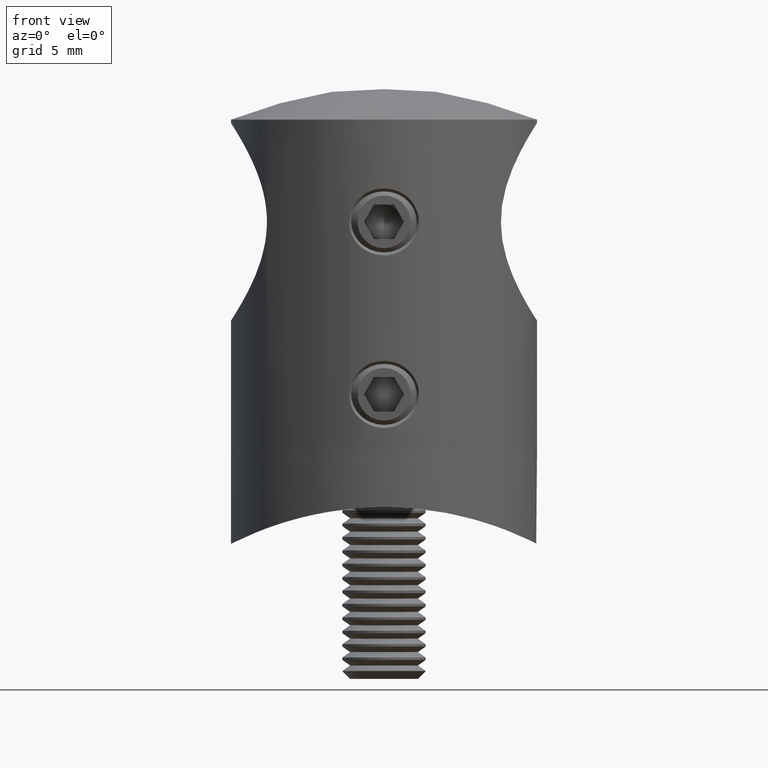
[diagram: clean part render]
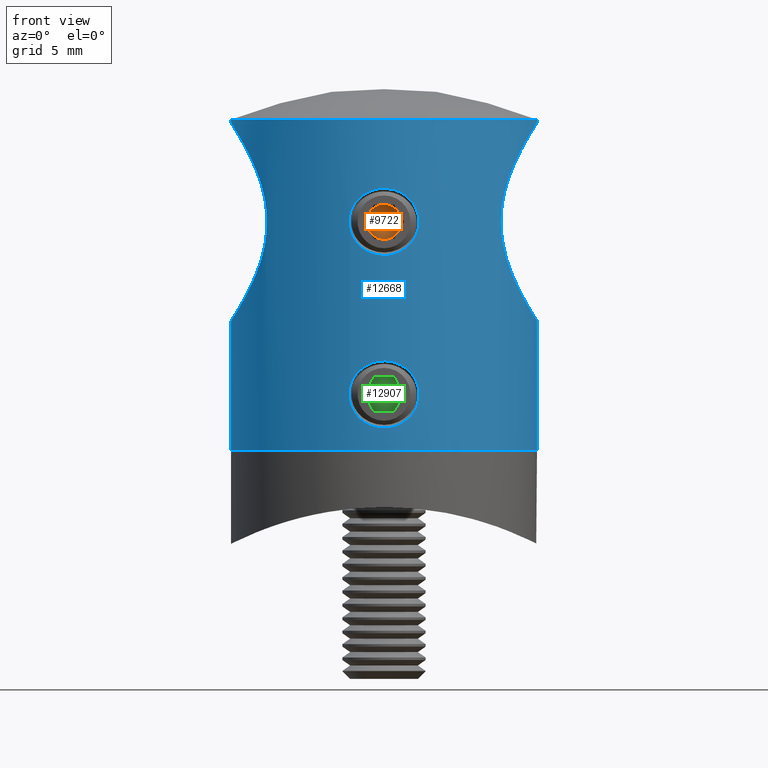
[diagram: same view with three faces highlighted in distinct colors, each labeled with its STEP entity id]
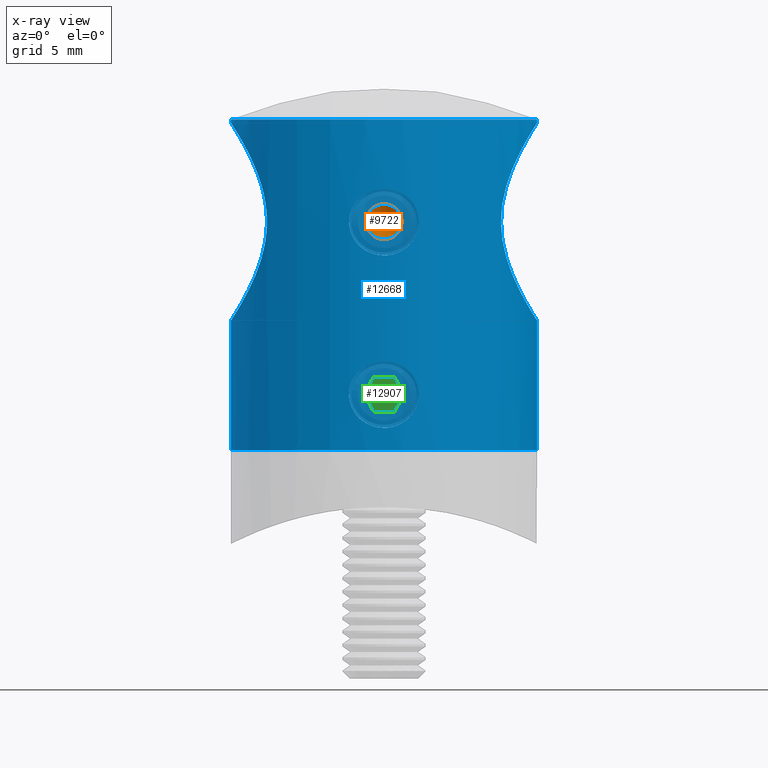
[diagram: x-ray of the same camera — body ghosted, the three highlighted faces saturated]
A machine part, front view with three faces highlighted in distinct colors.
The next image is the same camera in x-ray (body ghosted, the three faces saturated) — at least one of them is partly hidden behind the body in this view.
Their STEP definitions:

[orange] entity #9722 — the highlighted conical surface has half-angle 59 deg.
#578 = AXIS2_PLACEMENT_3D ( 'NONE', #1191, #5048, #3116 ) ;
#605 = DIRECTION ( 'NONE',  ( 1.000000000000000000, -0.0000000000000000000, 2.180260461768213300E-016 ) ) ;
#744 = VERTEX_POINT ( 'NONE', #14039 ) ;
#832 = DIRECTION ( 'NONE',  ( 1.000000000000000000, -0.0000000000000000000, 2.180260461768213300E-016 ) ) ;
#885 = CARTESIAN_POINT ( 'NONE',  ( 2.000000000000001300, 1.082531754730553100, -0.6249999999999965600 ) ) ;
#1191 = CARTESIAN_POINT ( 'NONE',  ( 2.000000000000000000, 0.0000000000000000000, 6.209410300080172700E-015 ) ) ;
#1214 = CIRCLE ( 'NONE', #21669, 1.250000000000002900 ) ;
#1291 = CARTESIAN_POINT ( 'NONE',  ( 2.000000000000001300, -1.082531754730553300, -0.6249999999999958900 ) ) ;
#1345 = CIRCLE ( 'NONE', #578, 1.250000000000002900 ) ;
#2207 = ORIENTED_EDGE ( 'NONE', *, *, #14970, .F. ) ;
#2560 = ORIENTED_EDGE ( 'NONE', *, *, #9775, .F. ) ;
#2993 = CARTESIAN_POINT ( 'NONE',  ( 2.000000000000001300, -1.082531754730552600, 0.6250000000000086600 ) ) ;
#3116 = DIRECTION ( 'NONE',  ( 0.0000000000000000000, 0.0000000000000000000, 1.000000000000000000 ) ) ;
#3741 = ORIENTED_EDGE ( 'NONE', *, *, #7053, .T. ) ;
#3820 = VERTEX_POINT ( 'NONE', #1291 ) ;
#5048 = DIRECTION ( 'NONE',  ( -1.000000000000000000, -0.0000000000000000000, 0.0000000000000000000 ) ) ;
#5764 = CIRCLE ( 'NONE', #8219, 1.250000000000002900 ) ;
#6404 = CARTESIAN_POINT ( 'NONE',  ( 2.000000000000001300, 0.0000000000000000000, 5.755839955992561400E-015 ) ) ;
#6817 = CONICAL_SURFACE ( 'NONE', #9667, 1.250000000000005300, 1.029744258676652800 ) ;
#7053 = EDGE_CURVE ( 'NONE', #744, #16678, #11853, .T. ) ;
#7721 = DIRECTION ( 'NONE',  ( 3.469446951953599400E-016, 0.0000000000000000000, -1.000000000000000000 ) ) ;
#7764 = DIRECTION ( 'NONE',  ( -1.000000000000000000, -0.0000000000000000000, 0.0000000000000000000 ) ) ;
#7894 = EDGE_CURVE ( 'NONE', #22087, #10348, #1214, .T. ) ;
#8219 = AXIS2_PLACEMENT_3D ( 'NONE', #15038, #7764, #9740 ) ;
#8251 = DIRECTION ( 'NONE',  ( 3.469446951953599400E-016, 0.0000000000000000000, -1.000000000000000000 ) ) ;
#8914 = AXIS2_PLACEMENT_3D ( 'NONE', #6404, #832, #8251 ) ;
#9258 = DIRECTION ( 'NONE',  ( -1.000000000000000000, -0.0000000000000000000, 0.0000000000000000000 ) ) ;
#9667 = AXIS2_PLACEMENT_3D ( 'NONE', #22468, #605, #7721 ) ;
#9722 = ADVANCED_FACE ( 'NONE', ( #18844 ), #6817, .F. ) ;
#9740 = DIRECTION ( 'NONE',  ( 0.0000000000000000000, 0.0000000000000000000, 1.000000000000000000 ) ) ;
#9775 = EDGE_CURVE ( 'NONE', #744, #3820, #19429, .T. ) ;
#9840 = EDGE_CURVE ( 'NONE', #10348, #16678, #1345, .T. ) ;
#10348 = VERTEX_POINT ( 'NONE', #20021 ) ;
#10908 = AXIS2_PLACEMENT_3D ( 'NONE', #16032, #12514, #12270 ) ;
#10964 = EDGE_LOOP ( 'NONE', ( #3741, #14349, #15978, #2207, #22680, #2560 ) ) ;
#11092 = DIRECTION ( 'NONE',  ( 0.0000000000000000000, 0.0000000000000000000, 1.000000000000000000 ) ) ;
#11853 = CIRCLE ( 'NONE', #8914, 1.250000000000005300 ) ;
#12270 = DIRECTION ( 'NONE',  ( 0.0000000000000000000, 0.0000000000000000000, 1.000000000000000000 ) ) ;
#12514 = DIRECTION ( 'NONE',  ( -1.000000000000000000, -0.0000000000000000000, 0.0000000000000000000 ) ) ;
#13755 = VERTEX_POINT ( 'NONE', #2993 ) ;
#14039 = CARTESIAN_POINT ( 'NONE',  ( 2.000000000000001800, 3.755786496842908900E-016, -1.249999999999999300 ) ) ;
#14117 = CARTESIAN_POINT ( 'NONE',  ( 2.000000000000000000, 0.0000000000000000000, 1.250000000000000200 ) ) ;
#14349 = ORIENTED_EDGE ( 'NONE', *, *, #9840, .F. ) ;
#14839 = DIRECTION ( 'NONE',  ( 0.0000000000000000000, 0.0000000000000000000, 1.000000000000000000 ) ) ;
#14918 = CARTESIAN_POINT ( 'NONE',  ( 2.000000000000000000, 0.0000000000000000000, 6.209410300080172700E-015 ) ) ;
#14970 = EDGE_CURVE ( 'NONE', #13755, #22087, #15866, .T. ) ;
#15038 = CARTESIAN_POINT ( 'NONE',  ( 2.000000000000000000, 0.0000000000000000000, 6.209410300080172700E-015 ) ) ;
#15866 = CIRCLE ( 'NONE', #21105, 1.250000000000002900 ) ;
#15978 = ORIENTED_EDGE ( 'NONE', *, *, #7894, .F. ) ;
#16032 = CARTESIAN_POINT ( 'NONE',  ( 2.000000000000000000, 0.0000000000000000000, 6.209410300080172700E-015 ) ) ;
#16678 = VERTEX_POINT ( 'NONE', #885 ) ;
#17644 = EDGE_CURVE ( 'NONE', #3820, #13755, #5764, .T. ) ;
#18529 = DIRECTION ( 'NONE',  ( -1.000000000000000000, -0.0000000000000000000, 0.0000000000000000000 ) ) ;
#18844 = FACE_OUTER_BOUND ( 'NONE', #10964, .T. ) ;
#19429 = CIRCLE ( 'NONE', #10908, 1.250000000000002900 ) ;
#20021 = CARTESIAN_POINT ( 'NONE',  ( 2.000000000000001300, 1.082531754730552600, 0.6250000000000085500 ) ) ;
#20152 = CARTESIAN_POINT ( 'NONE',  ( 2.000000000000000000, 0.0000000000000000000, 6.209410300080172700E-015 ) ) ;
#21105 = AXIS2_PLACEMENT_3D ( 'NONE', #20152, #18529, #14839 ) ;
#21669 = AXIS2_PLACEMENT_3D ( 'NONE', #14918, #9258, #11092 ) ;
#22087 = VERTEX_POINT ( 'NONE', #14117 ) ;
#22468 = CARTESIAN_POINT ( 'NONE',  ( 2.000000000000001300, 0.0000000000000000000, 5.755839955992561400E-015 ) ) ;
#22680 = ORIENTED_EDGE ( 'NONE', *, *, #17644, .F. ) ;

[blue] entity #12668 — the highlighted cylindrical surface (bore or boss wall) has radius 11 mm, axis along (0, 0, 1).
#29 = CARTESIAN_POINT ( 'NONE',  ( -10.99148700237107000, 0.4946336514024489700, 23.48682921834959500 ) ) ;
#116 = CARTESIAN_POINT ( 'NONE',  ( -10.83727758145454500, -1.898942890585058700, 9.554592817602502600 ) ) ;
#398 = CARTESIAN_POINT ( 'NONE',  ( 1.265772666319474600, -10.93117442413812100, 1.890181047744562000 ) ) ;
#470 = CARTESIAN_POINT ( 'NONE',  ( -2.256864148927033100, -10.76618397735132300, 5.071739856433886500 ) ) ;
#491 = CARTESIAN_POINT ( 'NONE',  ( -9.947855748482227900, -4.698627205197779800, 21.72771569207881400 ) ) ;
#541 = CARTESIAN_POINT ( 'NONE',  ( 1.890372269886328600, -10.83698242449021300, 2.402011649646420100 ) ) ;
#572 = CARTESIAN_POINT ( 'NONE',  ( -9.611617826107233100, 5.361562930642147500, 21.07654444607351300 ) ) ;
#620 = CARTESIAN_POINT ( 'NONE',  ( 10.74873748235941500, 2.348874627246540800, 9.695645327102669200 ) ) ;
#622 = CARTESIAN_POINT ( 'NONE',  ( 1.893470199382560000, -10.83645095076173300, 5.594738271604635200 ) ) ;
#700 = CARTESIAN_POINT ( 'NONE',  ( 1.116343252776195600, -10.94426300031197400, 6.169244775404881600 ) ) ;
#806 = CARTESIAN_POINT ( 'NONE',  ( 10.39262641175012400, 3.610959546615188500, 10.28242976620969500 ) ) ;
#811 = CARTESIAN_POINT ( 'NONE',  ( 10.18244583592515300, 4.166392664168421700, 22.15353385299223300 ) ) ;
#837 = CARTESIAN_POINT ( 'NONE',  ( 10.32148190190005700, 3.808950110484045700, 10.40382481806966700 ) ) ;
#893 = CARTESIAN_POINT ( 'NONE',  ( 8.604462001010002600, -6.853532578562345100, 18.26917815072582100 ) ) ;
#916 = CARTESIAN_POINT ( 'NONE',  ( 10.83727758145454200, 1.898942890585056900, 9.554592817602499000 ) ) ;
#979 = CARTESIAN_POINT ( 'NONE',  ( 8.402678174434404600, 7.098943678384629600, 16.89213793340527300 ) ) ;
#1058 = CARTESIAN_POINT ( 'NONE',  ( 8.775104742126355700, 6.634005485550293500, 13.85960298956172700 ) ) ;
#1137 = CARTESIAN_POINT ( 'NONE',  ( 10.99148700237106600, -0.4946336514024511400, 23.48682921834958400 ) ) ;
#1163 = ORIENTED_EDGE ( 'NONE', *, *, #20777, .T. ) ;
#1199 = CARTESIAN_POINT ( 'NONE',  ( -2.511703974928243700, -10.70940442520010400, 16.24273929157860500 ) ) ;
#1275 = CYLINDRICAL_SURFACE ( 'NONE', #17225, 10.99999999999999800 ) ;
#1278 = CARTESIAN_POINT ( 'NONE',  ( -1.776361239528236000, -10.85562254072522800, 18.10747495177491800 ) ) ;
#1302 = VERTEX_POINT ( 'NONE', #15335 ) ;
#1356 = CARTESIAN_POINT ( 'NONE',  ( -1.533328306870229700, -10.89347143110832900, 14.48063127000943600 ) ) ;
#1396 = CARTESIAN_POINT ( 'NONE',  ( -8.402230374133903700, 7.099473585173075900, 16.14441378369493300 ) ) ;
#1430 = CARTESIAN_POINT ( 'NONE',  ( 0.3311095054345719000, -10.99992139316568700, 18.81483076791868600 ) ) ;
#1513 = CARTESIAN_POINT ( 'NONE',  ( 0.1643935056931485900, -11.00000000000000000, 13.98484488613688500 ) ) ;
#1593 = CARTESIAN_POINT ( 'NONE',  ( 1.890372269886392700, -10.83698242449020200, 14.80201164964647400 ) ) ;
#1751 = CARTESIAN_POINT ( 'NONE',  ( -2.020667218593132300E-015, -10.99999999999999800, 13.98484490069484600 ) ) ;
#1796 = CARTESIAN_POINT ( 'NONE',  ( -10.39889520333792000, -3.592859680259353100, 22.52820406413297100 ) ) ;
#1859 = CARTESIAN_POINT ( 'NONE',  ( -1.261211241404091900, -10.92831925419361200, 1.905472548706967000 ) ) ;
#1877 = CARTESIAN_POINT ( 'NONE',  ( -9.125703618000466500, 6.149007665515013900, 19.97822596878965500 ) ) ;
#1959 = CARTESIAN_POINT ( 'NONE',  ( -10.32893578937957300, -3.788682685638863100, 22.40898187192343400 ) ) ;
#1960 = CARTESIAN_POINT ( 'NONE',  ( 11.00000000000000400, -4.065758146820641600E-016, 9.299999999999998900 ) ) ;
#2019 = CARTESIAN_POINT ( 'NONE',  ( -2.320240922396904300, -10.75251050043824500, 3.075104445097748900 ) ) ;
#2039 = CARTESIAN_POINT ( 'NONE',  ( 10.10539096786581000, -4.364378087092130300, 10.78095930433928400 ) ) ;
#2100 = CARTESIAN_POINT ( 'NONE',  ( -1.533328306870229700, -10.89347143110832900, 2.080631270009437800 ) ) ;
#2318 = CARTESIAN_POINT ( 'NONE',  ( 1.660782927785467800, -10.87454360748031900, 5.818738680863162000 ) ) ;
#2345 = CARTESIAN_POINT ( 'NONE',  ( -8.713927950806921200, -6.716937605689044400, 18.74613954834619600 ) ) ;
#2397 = CARTESIAN_POINT ( 'NONE',  ( 1.399033590713174800, -10.91066932007638700, 6.005811658922017800 ) ) ;
#2427 = CARTESIAN_POINT ( 'NONE',  ( -8.713338137559071900, -6.714570131918350200, 14.08064251900250200 ) ) ;
#2474 = CARTESIAN_POINT ( 'NONE',  ( 1.998357958369267700, -10.81735236367315700, 5.471525135721878800 ) ) ;
#2553 = CARTESIAN_POINT ( 'NONE',  ( 0.3311095053121640400, -10.99992139316571600, 6.414830767918807900 ) ) ;
#2638 = AXIS2_PLACEMENT_3D ( 'NONE', #4516, #20819, #19195 ) ;
#2668 = CARTESIAN_POINT ( 'NONE',  ( 9.866065930372878200, 4.867538550024849400, 21.57379312522551000 ) ) ;
#2674 = EDGE_LOOP ( 'NONE', ( #1163 ) ) ;
#2750 = CARTESIAN_POINT ( 'NONE',  ( 11.00035846530514200, 0.2214725248977498800, 23.50055536974437600 ) ) ;
#2824 = CARTESIAN_POINT ( 'NONE',  ( 8.712531411531246700, -6.715614010298820000, 18.71630400190571900 ) ) ;
#2880 = CARTESIAN_POINT ( 'NONE',  ( 1.116343252776377500, -10.94426300031195800, 18.56924477539900700 ) ) ;
#2909 = CARTESIAN_POINT ( 'NONE',  ( 9.126122353799150500, 6.148371097858402300, 12.82074655299189000 ) ) ;
#2964 = CARTESIAN_POINT ( 'NONE',  ( -0.4903270790838651400, -10.98906635504204500, 18.76868820874940300 ) ) ;
#2987 = CARTESIAN_POINT ( 'NONE',  ( 10.95950930229003000, -0.9729361877379636400, 23.43713052271612800 ) ) ;
#3044 = CARTESIAN_POINT ( 'NONE',  ( -1.543197030239320100, -10.89377639715052800, 18.33176205964109700 ) ) ;
#3252 = CARTESIAN_POINT ( 'NONE',  ( -8.712531411531246700, 6.715614010298820900, 18.71630400190571200 ) ) ;
#3286 = CARTESIAN_POINT ( 'NONE',  ( 1.995493121756457100, -10.81788920119303300, 14.92473889477621200 ) ) ;
#3325 = CARTESIAN_POINT ( 'NONE',  ( -10.53371792439568500, 3.199456506150320000, 10.04470791799387700 ) ) ;
#3437 = CARTESIAN_POINT ( 'NONE',  ( 2.430721202022829700, -10.72812621128730400, 15.77131744761732800 ) ) ;
#3610 = DIRECTION ( 'NONE',  ( 1.000000000000000000, 0.0000000000000000000, 0.0000000000000000000 ) ) ;
#3646 = CARTESIAN_POINT ( 'NONE',  ( -8.402678174434401000, -7.098943678384630500, 16.89213793340527300 ) ) ;
#3718 = CARTESIAN_POINT ( 'NONE',  ( -8.558052539306178400, -6.911109365526332500, 14.75603232091404500 ) ) ;
#3860 = FACE_OUTER_BOUND ( 'NONE', #2674, .T. ) ;
#3884 = CARTESIAN_POINT ( 'NONE',  ( 9.620235205234214600, -5.345870137422466900, 11.70599883665757100 ) ) ;
#3937 = CARTESIAN_POINT ( 'NONE',  ( -2.511716516407509900, -10.70940148379944100, 4.000337813666588400 ) ) ;
#4011 = CARTESIAN_POINT ( 'NONE',  ( -1.115993498496286900, -10.94431255610769100, 1.830513048320795400 ) ) ;
#4095 = CARTESIAN_POINT ( 'NONE',  ( -0.9631123533028165300, -10.95775591053731500, 6.230546734909931500 ) ) ;
#4121 = CARTESIAN_POINT ( 'NONE',  ( -9.620087015600834200, -5.346277183801666900, 21.09378180451514600 ) ) ;
#4167 = CARTESIAN_POINT ( 'NONE',  ( -1.268443744210112200, -10.93091935414430800, 6.108644643610253100 ) ) ;
#4172 = VERTEX_POINT ( 'NONE', #6300 ) ;
#4190 = CARTESIAN_POINT ( 'NONE',  ( -10.10047049893865000, 4.375164704028947900, 22.01011196334505400 ) ) ;
#4241 = CARTESIAN_POINT ( 'NONE',  ( -2.087083062809130600, -10.80018908579545200, 5.343704459521158700 ) ) ;
#4265 = CARTESIAN_POINT ( 'NONE',  ( -10.75343564665797100, 2.358425003356712700, 23.11323472417503300 ) ) ;
#4317 = CARTESIAN_POINT ( 'NONE',  ( 1.543890676010267700, -10.89363039259128000, 2.069276441871760900 ) ) ;
#4370 = CARTESIAN_POINT ( 'NONE',  ( 10.10047034617905700, 4.375483649562105400, 10.78982942695773600 ) ) ;
#4399 = CARTESIAN_POINT ( 'NONE',  ( 2.511799944583926100, -10.70938191707799400, 4.156688389902742000 ) ) ;
#4512 = CARTESIAN_POINT ( 'NONE',  ( 8.402230374133905500, -7.099473585173072400, 16.14441378369492600 ) ) ;
#4516 = CARTESIAN_POINT ( 'NONE',  ( 0.0000000000000000000, 0.0000000000000000000, 23.74878637916747000 ) ) ;
#4586 = CARTESIAN_POINT ( 'NONE',  ( 10.58394417430352200, -3.004956304348640000, 22.83701482432169200 ) ) ;
#4670 = CARTESIAN_POINT ( 'NONE',  ( 8.485167145169288700, -7.000410335542114600, 15.19174385368667200 ) ) ;
#4724 = CARTESIAN_POINT ( 'NONE',  ( 1.263044276381334100, -10.92810671215078600, 18.49350634205210800 ) ) ;
#4749 = CARTESIAN_POINT ( 'NONE',  ( 8.400936357774289900, -7.101004865438448600, 16.86596985220172600 ) ) ;
#4806 = CARTESIAN_POINT ( 'NONE',  ( -2.177980241902248300, -10.78262365602053500, 17.61316799658935400 ) ) ;
#4849 = CARTESIAN_POINT ( 'NONE',  ( 10.87554067984692500, 1.666944937178387300, 9.494294178244365100 ) ) ;
#4886 = CARTESIAN_POINT ( 'NONE',  ( -0.3276201266745030200, -10.99632626431403900, 18.79983241680432100 ) ) ;
#4971 = CARTESIAN_POINT ( 'NONE',  ( 0.6619940356628312200, -10.98427163761045800, 18.75101510548229200 ) ) ;
#4998 = AXIS2_PLACEMENT_3D ( 'NONE', #7949, #20850, #20770 ) ;
#5051 = CARTESIAN_POINT ( 'NONE',  ( -1.397269774137160900, -10.91089534265097100, 14.39305190935820100 ) ) ;
#5099 = CARTESIAN_POINT ( 'NONE',  ( -8.441615027164317600, 7.053644850158699200, 17.33924664838002300 ) ) ;
#5173 = CARTESIAN_POINT ( 'NONE',  ( -9.946385993569125000, 4.711332995782086600, 11.06939817182897000 ) ) ;
#5214 = CARTESIAN_POINT ( 'NONE',  ( 2.495530447802617200, -10.71323517469580200, 16.71605740764301700 ) ) ;
#5342 = CARTESIAN_POINT ( 'NONE',  ( -8.604462001010004400, 6.853532578562342400, 18.26917815072582800 ) ) ;
#5505 = CARTESIAN_POINT ( 'NONE',  ( -10.96270294519259100, -0.9359780770641063000, 23.44210052358779400 ) ) ;
#5592 = CARTESIAN_POINT ( 'NONE',  ( -10.53058741645235900, -3.186281656805154800, 22.74910505009927800 ) ) ;
#5644 = CARTESIAN_POINT ( 'NONE',  ( -2.179285043678576000, -10.78236625296386300, 2.788823219965029600 ) ) ;
#5664 = CARTESIAN_POINT ( 'NONE',  ( 10.84731057724800800, -1.885380813810667400, 9.538551356808243400 ) ) ;
#5952 = CARTESIAN_POINT ( 'NONE',  ( -0.4903270790838651400, -10.98906635504204500, 6.368688208749404100 ) ) ;
#5977 = CARTESIAN_POINT ( 'NONE',  ( -8.442684130846844300, -7.052366154554801100, 15.45217027337697100 ) ) ;
#6023 = CARTESIAN_POINT ( 'NONE',  ( -2.430803093581094000, -10.72810763096586800, 4.628396887069898800 ) ) ;
#6052 = CARTESIAN_POINT ( 'NONE',  ( -10.99297397562942500, -0.4598195259154094200, 23.48913258083435500 ) ) ;
#6110 = CARTESIAN_POINT ( 'NONE',  ( 0.9648935137385287200, -10.95759921274479100, 6.229834885426770400 ) ) ;
#6139 = CARTESIAN_POINT ( 'NONE',  ( -8.775104742126355700, -6.634005485550294300, 13.85960298956172900 ) ) ;
#6189 = CARTESIAN_POINT ( 'NONE',  ( -0.8104466578491685800, -10.97117418873381900, 6.291497780559771200 ) ) ;
#6300 = CARTESIAN_POINT ( 'NONE',  ( 10.99999999999999600, 0.0000000000000000000, 23.74878637916747000 ) ) ;
#6382 = CARTESIAN_POINT ( 'NONE',  ( 8.713927950806924700, 6.716937605689042600, 18.74613954834618600 ) ) ;
#6463 = CARTESIAN_POINT ( 'NONE',  ( 9.611617826107234900, -5.361562930642149300, 21.07654444607350500 ) ) ;
#6536 = CARTESIAN_POINT ( 'NONE',  ( 8.713338137559064800, 6.714570131918344800, 14.08064251900249500 ) ) ;
#6589 = CARTESIAN_POINT ( 'NONE',  ( 1.660782927847469700, -10.87454360747016800, 18.21873868081512500 ) ) ;
#6612 = CARTESIAN_POINT ( 'NONE',  ( 9.941559082019178800, -4.721753626895443600, 21.72179177554297200 ) ) ;
#6749 = CARTESIAN_POINT ( 'NONE',  ( -0.3315329493984952600, -10.99999999999999600, 13.98484493005393500 ) ) ;
#6909 = CARTESIAN_POINT ( 'NONE',  ( -2.511729057886776100, -10.70939854239878000, 16.55793633575457200 ) ) ;
#6957 = CARTESIAN_POINT ( 'NONE',  ( -8.716197689742701400, 6.713987155183081900, 14.04568685242710500 ) ) ;
#7069 = CARTESIAN_POINT ( 'NONE',  ( 2.511715917072544300, -10.70940162436372500, 16.39829770860849600 ) ) ;
#7235 = CARTESIAN_POINT ( 'NONE',  ( 9.445230156511863500, 5.645901492588390800, 12.07133753557889700 ) ) ;
#7236 = CARTESIAN_POINT ( 'NONE',  ( 2.495297978060719400, -10.71329013739285700, 16.08204341393588500 ) ) ;
#7283 = CARTESIAN_POINT ( 'NONE',  ( -8.602152119893851500, 6.856982156598213900, 14.49886696194903600 ) ) ;
#7362 = CARTESIAN_POINT ( 'NONE',  ( -10.39262641175012400, -3.610959546615189400, 10.28242976620969400 ) ) ;
#7422 = CARTESIAN_POINT ( 'NONE',  ( -1.777212278540741600, -10.85548324659036000, 2.293344047289692400 ) ) ;
#7441 = CARTESIAN_POINT ( 'NONE',  ( -9.941566712052260600, -4.721521006677416900, 11.07832343451947400 ) ) ;
#7447 = EDGE_CURVE ( 'NONE', #16534, #16534, #8049, .T. ) ;
#7492 = ORIENTED_EDGE ( 'NONE', *, *, #14515, .T. ) ;
#7527 = CARTESIAN_POINT ( 'NONE',  ( 10.75664178787483000, -2.343158699880905100, 9.681676794799932000 ) ) ;
#7585 = CARTESIAN_POINT ( 'NONE',  ( -2.511703974928243700, -10.70940442520010400, 3.842739291575714100 ) ) ;
#7734 = CARTESIAN_POINT ( 'NONE',  ( 2.318934602487287200, -10.75279230290379400, 3.072080269349922100 ) ) ;
#7762 = B_SPLINE_CURVE_WITH_KNOTS ( 'NONE', 3,
 ( #14235, #14551, #23549, #16324, #18244, #3325, #14312, #19941, #5173, #21876, #8965, #12563, #14390, #6957, #7283, #20097, #8802, #18080, #1396, #14472, #5099, #10788, #5342, #3252, #16079, #17928, #1877, #14718, #572, #15177, #4190, #9661, #11504, #13351, #9197, #4265, #9122, #16953, #22583, #29, #12800, #23804, #6052, #5505, #18404, #17111, #21956, #10958, #5592, #1796, #1959, #15106, #20186, #491, #14631, #4121, #18787, #9733, #7835, #2345, #17032, #13426, #3646, #18864, #5977, #3718, #20652, #2427, #6139, #22505, #7913, #16566, #16491, #7441, #20731, #18326, #7362, #11584, #15254, #18943, #20265, #116, #7987, #22035, #9284, #11038 ),
 .UNSPECIFIED., .T., .F.,
 ( 4, 2, 2, 2, 2, 2, 2, 2, 2, 2, 2, 2, 2, 2, 2, 2, 2, 2, 2, 2, 2, 2, 2, 2, 2, 2, 2, 2, 2, 2, 2, 2, 2, 2, 2, 2, 2, 2, 2, 2, 2, 2, 4 ),
 ( 0.0000000000000000000, 0.001429294004371782500, 0.002858588008743564900, 0.004287882013115348000, 0.005717176017487131600, 0.007146470021858916000, 0.008575764026230701200, 0.01000505803060248700, 0.01071970503278837900, 0.01143435203497426500, 0.01286364603934605200, 0.01357829304153194300, 0.01429294004371783200, 0.01572223404808961700, 0.01715152805246140200, 0.01858082205683318800, 0.01929546905901908000, 0.02001011606120497700, 0.02143941006557676500, 0.02215405706776266500, 0.02286870406994855700, 0.02358335107213445400, 0.02429799807432034600, 0.02572729207869214500, 0.02644193908087803800, 0.02715658608306393400, 0.02787123308524983000, 0.02858588008743573000, 0.03001517409180752900, 0.03144446809617931800, 0.03287376210055111000, 0.03430305610492290200, 0.03573235010929469400, 0.03644699711148059700, 0.03716164411366650000, 0.03859093811803830000, 0.04002023212241010600, 0.04144952612678190500, 0.04216417312896780800, 0.04287882013115371100, 0.04359346713333961400, 0.04430811413552551700, 0.04573740813989731600 ),
 .UNSPECIFIED. ) ;
#7808 = CARTESIAN_POINT ( 'NONE',  ( 1.774878405260975000, -10.85586508052390200, 2.291099913721534000 ) ) ;
#7835 = CARTESIAN_POINT ( 'NONE',  ( -8.979158664259912800, -6.358026487253732200, 19.59329309121691800 ) ) ;
#7885 = CARTESIAN_POINT ( 'NONE',  ( 2.430721202022804000, -10.72812621128730700, 3.371317447623022100 ) ) ;
#7913 = CARTESIAN_POINT ( 'NONE',  ( -9.126122353799150500, -6.148371097858401400, 12.82074655299189400 ) ) ;
#7949 = CARTESIAN_POINT ( 'NONE',  ( 0.0000000000000000000, 0.0000000000000000000, 0.0000000000000000000 ) ) ;
#7962 = CARTESIAN_POINT ( 'NONE',  ( 0.9623838866416614100, -10.95781991341035100, 1.769162574123964900 ) ) ;
#7987 = CARTESIAN_POINT ( 'NONE',  ( -10.87554067984692100, -1.666944937178388700, 9.494294178244363300 ) ) ;
#7995 = CIRCLE ( 'NONE', #4998, 11.00000000000000000 ) ;
#8036 = CARTESIAN_POINT ( 'NONE',  ( 0.6509923735187122000, -10.98190638562528300, 1.662025886936727500 ) ) ;
#8049 = B_SPLINE_CURVE_WITH_KNOTS ( 'NONE', 3,
 ( #1960, #20423, #16645, #5664, #7527, #14945, #9362, #2039, #14867, #3884, #21211, #22822, #22973, #15651, #17590, #4670, #8381, #10207, #4512, #4749, #12056, #11980, #893, #2824, #10283, #12142, #22899, #13738, #6463, #6612, #19432, #8463, #19273, #8304, #4586, #21293, #9976, #23132, #2987, #1137, #13979, #2750, #19357, #15817, #21135, #15575, #8150, #11821, #20970, #15734, #15496, #811, #23055, #13662, #2668, #17361, #17435, #10139, #8230, #6382, #10057, #19190, #979, #13821, #17509, #21053, #11903, #6536, #1058, #13906, #2909, #7235, #12999, #12914, #4370, #837, #806, #17106, #10136, #11976, #620, #916, #4849, #17523, #12153, #19693 ),
 .UNSPECIFIED., .T., .F.,
 ( 4, 2, 2, 2, 2, 2, 2, 2, 2, 2, 2, 2, 2, 2, 2, 2, 2, 2, 2, 2, 2, 2, 2, 2, 2, 2, 2, 2, 2, 2, 2, 2, 2, 2, 2, 2, 2, 2, 2, 2, 2, 2, 4 ),
 ( 0.0000000000000000000, 0.001429294004371784200, 0.002858588008743568400, 0.004287882013115352400, 0.005717176017487137600, 0.007146470021858922900, 0.008575764026230708200, 0.01000505803060249300, 0.01071970503278838600, 0.01143435203497427400, 0.01286364603934605700, 0.01357829304153195000, 0.01429294004371784100, 0.01572223404808962800, 0.01715152805246140900, 0.01858082205683319500, 0.01929546905901909100, 0.02001011606120498700, 0.02143941006557678300, 0.02215405706776268200, 0.02286870406994858200, 0.02358335107213447800, 0.02429799807432037700, 0.02572729207869217300, 0.02644193908087807600, 0.02715658608306396900, 0.02787123308524986500, 0.02858588008743576100, 0.03001517409180755700, 0.03144446809617935200, 0.03287376210055114500, 0.03430305610492294400, 0.03573235010929473600, 0.03644699711148063200, 0.03716164411366652800, 0.03859093811803832700, 0.04002023212241012700, 0.04144952612678192600, 0.04216417312896782200, 0.04287882013115372500, 0.04359346713333962100, 0.04430811413552551700, 0.04573740813989731600 ),
 .UNSPECIFIED. ) ;
#8150 = CARTESIAN_POINT ( 'NONE',  ( 10.76013234905316700, 2.327659393083309600, 23.12391534086663100 ) ) ;
#8230 = CARTESIAN_POINT ( 'NONE',  ( 8.979158664259912800, 6.358026487253727800, 19.59329309121693200 ) ) ;
#8304 = CARTESIAN_POINT ( 'NONE',  ( 10.52162891456611900, -3.215649772253206300, 22.73424068538132300 ) ) ;
#8381 = CARTESIAN_POINT ( 'NONE',  ( 8.454743453844093500, -7.036928176547490000, 15.42595698804817400 ) ) ;
#8437 = CARTESIAN_POINT ( 'NONE',  ( 1.893470199320557800, -10.83645095077188500, 17.99473827165266100 ) ) ;
#8463 = CARTESIAN_POINT ( 'NONE',  ( 10.31976075114465600, -3.813519458579155000, 22.39319822350305600 ) ) ;
#8515 = CARTESIAN_POINT ( 'NONE',  ( -1.261211241404091900, -10.92831925419361200, 14.30547254870696400 ) ) ;
#8680 = CARTESIAN_POINT ( 'NONE',  ( -2.495562452213592400, -10.71322910456338400, 16.08336297108577600 ) ) ;
#8758 = CARTESIAN_POINT ( 'NONE',  ( -1.892943344172693700, -10.83654561251257900, 17.99533139784182700 ) ) ;
#8802 = CARTESIAN_POINT ( 'NONE',  ( -8.454743453844088200, 7.036928176547486500, 15.42595698804817600 ) ) ;
#8965 = CARTESIAN_POINT ( 'NONE',  ( -9.451433528349374700, 5.635541834417797900, 12.05790560231922000 ) ) ;
#9062 = FACE_BOUND ( 'NONE', #12859, .T. ) ;
#9085 = CARTESIAN_POINT ( 'NONE',  ( 2.463009590041774600, -10.72070817434008000, 15.92668043077660700 ) ) ;
#9122 = CARTESIAN_POINT ( 'NONE',  ( -10.84297000111510400, 1.910690892895686300, 23.25460155054431900 ) ) ;
#9157 = CARTESIAN_POINT ( 'NONE',  ( 2.383584876156975800, -10.73884196754174300, 17.17801713178284500 ) ) ;
#9197 = CARTESIAN_POINT ( 'NONE',  ( -10.58394417430352300, 3.004956304348640900, 22.83701482432169200 ) ) ;
#9284 = CARTESIAN_POINT ( 'NONE',  ( -10.99999999999999800, -0.4841043843129450600, 9.299999999999995400 ) ) ;
#9362 = CARTESIAN_POINT ( 'NONE',  ( 10.40114453351063000, -3.603181246278879300, 10.26497764200933300 ) ) ;
#9568 = CARTESIAN_POINT ( 'NONE',  ( 2.511631889561162000, -10.70942133164945500, 3.839907027314249300 ) ) ;
#9638 = CARTESIAN_POINT ( 'NONE',  ( -1.996185883738268000, -10.81775451556606900, 5.474240922415229500 ) ) ;
#9647 = VERTEX_POINT ( 'NONE', #20587 ) ;
#9661 = CARTESIAN_POINT ( 'NONE',  ( -10.31976075114465800, 3.813519458579155000, 22.39319822350306000 ) ) ;
#9710 = CARTESIAN_POINT ( 'NONE',  ( 0.3284569029660139900, -10.99628005263193000, 1.600367236529137300 ) ) ;
#9733 = CARTESIAN_POINT ( 'NONE',  ( -9.134031390889502300, -6.136687821570409300, 19.99930232546839900 ) ) ;
#9788 = CARTESIAN_POINT ( 'NONE',  ( 2.511715917072544300, -10.70940162436372500, 3.998297708608496300 ) ) ;
#9868 = CARTESIAN_POINT ( 'NONE',  ( 1.777126563584013900, -10.85549727912102600, 5.706738476233899100 ) ) ;
#9976 = CARTESIAN_POINT ( 'NONE',  ( 10.84297000111511100, -1.910690892895690100, 23.25460155054432200 ) ) ;
#9978 = CARTESIAN_POINT ( 'NONE',  ( 11.00000000000000000, 0.0000000000000000000, 0.0000000000000000000 ) ) ;
#10057 = CARTESIAN_POINT ( 'NONE',  ( 8.602017511315835900, 6.857174581406583900, 18.30214852131759100 ) ) ;
#10136 = CARTESIAN_POINT ( 'NONE',  ( 10.58647855960269600, 2.995887424184126200, 9.958827788779814200 ) ) ;
#10139 = CARTESIAN_POINT ( 'NONE',  ( 9.134031390889505900, 6.136687821570410200, 19.99930232546839500 ) ) ;
#10207 = CARTESIAN_POINT ( 'NONE',  ( 8.413237320255296600, -7.086500040589212900, 15.90136674223512400 ) ) ;
#10261 = CARTESIAN_POINT ( 'NONE',  ( 2.089123661313935900, -10.79979455025595500, 17.74076931704600600 ) ) ;
#10283 = CARTESIAN_POINT ( 'NONE',  ( 8.773313068562657700, -6.636362158982227500, 18.93414140837189700 ) ) ;
#10339 = CARTESIAN_POINT ( 'NONE',  ( -2.256864148927046000, -10.76618397735132100, 17.47173985643386700 ) ) ;
#10410 = EDGE_CURVE ( 'NONE', #21136, #21136, #7762, .T. ) ;
#10427 = CARTESIAN_POINT ( 'NONE',  ( -1.892899697437106800, -10.83654340792404500, 14.80472538099371200 ) ) ;
#10463 = FACE_BOUND ( 'NONE', #12717, .T. ) ;
#10503 = CARTESIAN_POINT ( 'NONE',  ( 1.399033590713174800, -10.91066932007638700, 18.40581165892201200 ) ) ;
#10582 = CARTESIAN_POINT ( 'NONE',  ( -2.319860156032100400, -10.75259265742242600, 17.32577823827256900 ) ) ;
#10749 = CARTESIAN_POINT ( 'NONE',  ( 2.318934602487287200, -10.75279230290379400, 15.47208026934992200 ) ) ;
#10788 = CARTESIAN_POINT ( 'NONE',  ( -8.556951803790923300, 6.912471939353778800, 18.03836936382260000 ) ) ;
#10958 = CARTESIAN_POINT ( 'NONE',  ( -10.59253960969030900, -2.974511089570729200, 22.85112724400618200 ) ) ;
#10984 = EDGE_CURVE ( 'NONE', #1302, #1302, #16581, .T. ) ;
#11031 = CIRCLE ( 'NONE', #2638, 10.99999999999999600 ) ;
#11038 = CARTESIAN_POINT ( 'NONE',  ( -10.99999999999999600, 2.710505431213761100E-016, 9.299999999999995400 ) ) ;
#11096 = CARTESIAN_POINT ( 'NONE',  ( -2.430626934630721900, -10.72814813956303400, 3.370817171176732100 ) ) ;
#11154 = DIRECTION ( 'NONE',  ( -0.0000000000000000000, -0.0000000000000000000, 1.000000000000000000 ) ) ;
#11175 = CARTESIAN_POINT ( 'NONE',  ( -1.661524859658452900, -10.87442308525437100, 2.181962713599229900 ) ) ;
#11290 = ORIENTED_EDGE ( 'NONE', *, *, #10984, .T. ) ;
#11404 = CARTESIAN_POINT ( 'NONE',  ( -2.495363705507605000, -10.71327480271960800, 4.317531738034352500 ) ) ;
#11478 = CARTESIAN_POINT ( 'NONE',  ( 1.535022905085276800, -10.89323192799682400, 5.918116975765959100 ) ) ;
#11504 = CARTESIAN_POINT ( 'NONE',  ( -10.38970443803621700, 3.619270667396481400, 22.51260078479329600 ) ) ;
#11556 = CARTESIAN_POINT ( 'NONE',  ( 1.995493121756470000, -10.81788920119303100, 2.524738894776223900 ) ) ;
#11584 = CARTESIAN_POINT ( 'NONE',  ( -10.52509504090270200, -3.204385582520144800, 10.05999941236710000 ) ) ;
#11610 = EDGE_LOOP ( 'NONE', ( #18952 ) ) ;
#11630 = CARTESIAN_POINT ( 'NONE',  ( 2.256830909742726800, -10.76619328781119300, 5.071927192361033400 ) ) ;
#11711 = CARTESIAN_POINT ( 'NONE',  ( -2.463083399544349300, -10.72069121684273800, 4.472964312552125700 ) ) ;
#11821 = CARTESIAN_POINT ( 'NONE',  ( 10.59253960969031100, 2.974511089570728300, 22.85112724400619300 ) ) ;
#11888 = EDGE_LOOP ( 'NONE', ( #15188 ) ) ;
#11903 = CARTESIAN_POINT ( 'NONE',  ( 8.605012383103654000, 6.852844332284524500, 14.52826397732347600 ) ) ;
#11976 = CARTESIAN_POINT ( 'NONE',  ( 10.69829764722810100, 2.568131071932642200, 9.776651623962862900 ) ) ;
#11980 = CARTESIAN_POINT ( 'NONE',  ( 8.556951803790930500, -6.912471939353781500, 18.03836936382260000 ) ) ;
#12056 = CARTESIAN_POINT ( 'NONE',  ( 8.441615027164326400, -7.053644850158703700, 17.33924664838004000 ) ) ;
#12114 = CARTESIAN_POINT ( 'NONE',  ( -0.9631123533028067600, -10.95775591053731500, 18.63054673490993100 ) ) ;
#12142 = CARTESIAN_POINT ( 'NONE',  ( 8.971544570989790300, -6.368727316150223100, 19.57206776467770100 ) ) ;
#12153 = CARTESIAN_POINT ( 'NONE',  ( 11.00000000000000500, 0.4841043843129448900, 9.300000000000000700 ) ) ;
#12197 = CARTESIAN_POINT ( 'NONE',  ( -1.268443744548116500, -10.93091935411460000, 18.50864464349973900 ) ) ;
#12275 = CARTESIAN_POINT ( 'NONE',  ( -2.087083062809130600, -10.80018908579545200, 17.74370445952115500 ) ) ;
#12353 = CARTESIAN_POINT ( 'NONE',  ( -1.777212278540741600, -10.85548324659036000, 14.69334404728969000 ) ) ;
#12439 = CARTESIAN_POINT ( 'NONE',  ( -0.6530340314932273600, -10.98180644577005100, 18.73754400069448100 ) ) ;
#12517 = CARTESIAN_POINT ( 'NONE',  ( 0.8106894969185034500, -10.97114265803630100, 14.10865333735333300 ) ) ;
#12563 = CARTESIAN_POINT ( 'NONE',  ( -9.132219529114744100, 6.139339865191939100, 12.80533429294058900 ) ) ;
#12600 = CARTESIAN_POINT ( 'NONE',  ( 1.543890676010139400, -10.89363039259130200, 14.46927644187164600 ) ) ;
#12668 = ADVANCED_FACE ( 'NONE', ( #10463, #9062, #13916, #19061, #17638, #3860 ), #1275, .T. ) ;
#12717 = EDGE_LOOP ( 'NONE', ( #11290 ) ) ;
#12757 = CARTESIAN_POINT ( 'NONE',  ( 2.511631889561162000, -10.70942133164945500, 16.23990702731718000 ) ) ;
#12800 = CARTESIAN_POINT ( 'NONE',  ( -10.99961482503125000, 0.2557540722021372500, 23.49940324905146500 ) ) ;
#12838 = CARTESIAN_POINT ( 'NONE',  ( 2.256039582261505100, -10.76635616935049600, 15.32675565418613100 ) ) ;
#12859 = EDGE_LOOP ( 'NONE', ( #7492 ) ) ;
#12861 = CARTESIAN_POINT ( 'NONE',  ( -0.3315329495189393000, -10.99999999999999600, 1.584844930053871600 ) ) ;
#12914 = CARTESIAN_POINT ( 'NONE',  ( 9.941566712052258800, 4.721521006677412500, 11.07832343451946900 ) ) ;
#12999 = CARTESIAN_POINT ( 'NONE',  ( 9.614416560844226500, 5.356351696933844900, 11.71785320789334300 ) ) ;
#13099 = CARTESIAN_POINT ( 'NONE',  ( -2.463094693421274500, -10.72068862206341100, 3.527090071124106900 ) ) ;
#13250 = CARTESIAN_POINT ( 'NONE',  ( 0.4897246382423631200, -10.98909321912860500, 1.631196561732932500 ) ) ;
#13323 = CARTESIAN_POINT ( 'NONE',  ( 0.002621827913299337800, -10.99999968754628400, 6.415153783528235300 ) ) ;
#13351 = CARTESIAN_POINT ( 'NONE',  ( -10.52162891456611900, 3.215649772253206700, 22.73424068538132700 ) ) ;
#13404 = CARTESIAN_POINT ( 'NONE',  ( 2.495530447802617200, -10.71323517469580200, 4.316057407643017800 ) ) ;
#13426 = CARTESIAN_POINT ( 'NONE',  ( -8.444364125748993600, -7.050408712736898800, 17.36475345057839100 ) ) ;
#13473 = CARTESIAN_POINT ( 'NONE',  ( -2.382856163137168100, -10.73900133749352800, 4.779816620111248000 ) ) ;
#13554 = CARTESIAN_POINT ( 'NONE',  ( -2.319860156032100400, -10.75259265742242600, 4.925778238272567200 ) ) ;
#13605 = EDGE_CURVE ( 'NONE', #4172, #4172, #11031, .T. ) ;
#13659 = EDGE_LOOP ( 'NONE', ( #22084 ) ) ;
#13662 = CARTESIAN_POINT ( 'NONE',  ( 9.947855748482229600, 4.698627205197778900, 21.72771569207881700 ) ) ;
#13738 = CARTESIAN_POINT ( 'NONE',  ( 9.445165846722382200, -5.646025497822185100, 20.72855546715353000 ) ) ;
#13821 = CARTESIAN_POINT ( 'NONE',  ( 8.400921406657444000, 7.101022558136128800, 15.93882788113832800 ) ) ;
#13906 = CARTESIAN_POINT ( 'NONE',  ( 8.974584736475273800, 6.364495021462755800, 13.21915323638559100 ) ) ;
#13916 = FACE_BOUND ( 'NONE', #13659, .T. ) ;
#13955 = CARTESIAN_POINT ( 'NONE',  ( -2.320240922396904300, -10.75251050043824500, 15.47510444509774700 ) ) ;
#13979 = CARTESIAN_POINT ( 'NONE',  ( 10.99961482503124400, -0.2557540722021420200, 23.49940324905145100 ) ) ;
#14034 = CARTESIAN_POINT ( 'NONE',  ( -2.430803093581094000, -10.72810763096586800, 17.02839688706989600 ) ) ;
#14115 = CARTESIAN_POINT ( 'NONE',  ( -0.1616220108473223100, -11.00003883473658200, 18.81531529133300400 ) ) ;
#14192 = CARTESIAN_POINT ( 'NONE',  ( -2.257482614959168500, -10.76605286276669600, 15.32954661957115100 ) ) ;
#14235 = CARTESIAN_POINT ( 'NONE',  ( -10.99999999999999600, 2.710505431213761100E-016, 9.299999999999995400 ) ) ;
#14271 = CARTESIAN_POINT ( 'NONE',  ( 2.431469541523701300, -10.72795581613253500, 17.02585049196845500 ) ) ;
#14312 = CARTESIAN_POINT ( 'NONE',  ( -10.40114453351063500, 3.603181246278877500, 10.26497764200933100 ) ) ;
#14345 = CARTESIAN_POINT ( 'NONE',  ( 2.320207892953276600, -10.75251762767572900, 17.32497216206398200 ) ) ;
#14390 = CARTESIAN_POINT ( 'NONE',  ( -8.981137454154914900, 6.355225858788589500, 13.20132555570548200 ) ) ;
#14430 = CARTESIAN_POINT ( 'NONE',  ( 1.265772666088006400, -10.93117442415845100, 14.29018104766522700 ) ) ;
#14472 = CARTESIAN_POINT ( 'NONE',  ( -8.400936357774282800, 7.101004865438452100, 16.86596985220173700 ) ) ;
#14515 = EDGE_CURVE ( 'NONE', #9647, #9647, #18171, .T. ) ;
#14551 = CARTESIAN_POINT ( 'NONE',  ( -10.99999999999999500, 0.4841043843129387300, 9.299999999999995400 ) ) ;
#14631 = CARTESIAN_POINT ( 'NONE',  ( -9.866065930372879900, -4.867538550024850300, 21.57379312522552100 ) ) ;
#14697 = CARTESIAN_POINT ( 'NONE',  ( -1.397269774137160900, -10.91089534265097100, 1.993051909358202400 ) ) ;
#14718 = CARTESIAN_POINT ( 'NONE',  ( -9.445165846722382200, 5.646025497822180700, 20.72855546715352300 ) ) ;
#14774 = CARTESIAN_POINT ( 'NONE',  ( -0.6586619930405998000, -10.98452728326412000, 1.647857589364626800 ) ) ;
#14867 = CARTESIAN_POINT ( 'NONE',  ( 9.946385993569125000, -4.711332995782090200, 11.06939817182897200 ) ) ;
#14922 = CARTESIAN_POINT ( 'NONE',  ( -0.9635496633443911800, -10.95771746515983500, 1.769627895335405900 ) ) ;
#14945 = CARTESIAN_POINT ( 'NONE',  ( 10.53371792439568500, -3.199456506150320800, 10.04470791799388100 ) ) ;
#15081 = CARTESIAN_POINT ( 'NONE',  ( 2.463009590041774600, -10.72070817434008000, 3.526680430776609800 ) ) ;
#15106 = CARTESIAN_POINT ( 'NONE',  ( -10.18244583592515300, -4.166392664168425200, 22.15353385299223300 ) ) ;
#15153 = CARTESIAN_POINT ( 'NONE',  ( 1.263044276341072700, -10.92810671215594800, 6.093506342078076600 ) ) ;
#15177 = CARTESIAN_POINT ( 'NONE',  ( -9.941559082019182400, 4.721753626895441000, 21.72179177554297200 ) ) ;
#15188 = ORIENTED_EDGE ( 'NONE', *, *, #13605, .F. ) ;
#15225 = CARTESIAN_POINT ( 'NONE',  ( 2.463499994663159100, -10.72059549541417000, 4.470953949805736900 ) ) ;
#15254 = CARTESIAN_POINT ( 'NONE',  ( -10.58647855960270200, -2.995887424184125300, 9.958827788779816000 ) ) ;
#15303 = CARTESIAN_POINT ( 'NONE',  ( 2.495297978060744700, -10.71329013739285200, 3.682043413930197400 ) ) ;
#15335 = CARTESIAN_POINT ( 'NONE',  ( -2.020667218593132300E-015, -10.99999999999999800, 1.584844900694847100 ) ) ;
#15391 = CARTESIAN_POINT ( 'NONE',  ( 2.383584876163826700, -10.73884196754026400, 4.778017131766939800 ) ) ;
#15496 = CARTESIAN_POINT ( 'NONE',  ( 10.32893578937957500, 3.788682685638860500, 22.40898187192343700 ) ) ;
#15575 = CARTESIAN_POINT ( 'NONE',  ( 10.84870917457875600, 1.878547199976223300, 23.26366087614006200 ) ) ;
#15651 = CARTESIAN_POINT ( 'NONE',  ( 8.716197689742696000, -6.713987155183075700, 14.04568685242709100 ) ) ;
#15711 = CARTESIAN_POINT ( 'NONE',  ( -2.495363705507605000, -10.71327480271960800, 16.71753173803435300 ) ) ;
#15734 = CARTESIAN_POINT ( 'NONE',  ( 10.39889520333791500, 3.592859680259352700, 22.52820406413297500 ) ) ;
#15791 = CARTESIAN_POINT ( 'NONE',  ( -2.179285043662281500, -10.78236625296701400, 15.18882321993868900 ) ) ;
#15817 = CARTESIAN_POINT ( 'NONE',  ( 10.96270294519258900, 0.9359780770641037400, 23.44210052358779400 ) ) ;
#15876 = CARTESIAN_POINT ( 'NONE',  ( -2.511716516407509900, -10.70940148379944100, 16.40033781366658500 ) ) ;
#15960 = CARTESIAN_POINT ( 'NONE',  ( 0.002621827913309108200, -10.99999968754628400, 18.81515378352823500 ) ) ;
#16039 = CARTESIAN_POINT ( 'NONE',  ( -0.6586619930911564700, -10.98452728325967300, 14.04785758938482100 ) ) ;
#16079 = CARTESIAN_POINT ( 'NONE',  ( -8.773313068562657700, 6.636362158982228400, 18.93414140837189700 ) ) ;
#16324 = CARTESIAN_POINT ( 'NONE',  ( -10.84731057724800600, 1.885380813810666700, 9.538551356808239800 ) ) ;
#16361 = CARTESIAN_POINT ( 'NONE',  ( 0.4897246382423631200, -10.98909321912860500, 14.03119656173292800 ) ) ;
#16452 = CARTESIAN_POINT ( 'NONE',  ( 2.087175410688430600, -10.80017123961548500, 15.05642817077661600 ) ) ;
#16491 = CARTESIAN_POINT ( 'NONE',  ( -9.614416560844219400, -5.356351696933844100, 11.71785320789334200 ) ) ;
#16534 = VERTEX_POINT ( 'NONE', #22659 ) ;
#16566 = CARTESIAN_POINT ( 'NONE',  ( -9.445230156511863500, -5.645901492588399700, 12.07133753557890900 ) ) ;
#16581 = B_SPLINE_CURVE_WITH_KNOTS ( 'NONE', 3,
 ( #22173, #12861, #14774, #14922, #4011, #1859, #14697, #2100, #11175, #7422, #20244, #20399, #16781, #5644, #22091, #2019, #18465, #11096, #13099, #18536, #7585, #3937, #22631, #11404, #11711, #6023, #13473, #13554, #470, #20630, #4241, #9638, #19002, #17085, #18839, #4167, #4095, #6189, #20867, #5952, #16925, #17010, #13323, #2553, #22482, #6110, #700, #15153, #2397, #11478, #2318, #9868, #622, #2474, #18912, #20785, #11630, #18760, #15391, #18684, #15225, #13404, #4399, #9788, #9568, #15303, #15081, #7885, #17251, #7734, #20558, #20706, #22403, #11556, #541, #7808, #4317, #398, #7962, #17167, #8036, #13250, #9710, #22556, #22712 ),
 .UNSPECIFIED., .T., .F.,
 ( 4, 3, 3, 3, 3, 3, 3, 3, 3, 3, 3, 3, 3, 3, 3, 3, 3, 3, 3, 3, 3, 3, 3, 3, 3, 3, 3, 3, 4 ),
 ( 0.0000000000000000000, 0.03571428571428571200, 0.07142857142857142500, 0.1071428571428571400, 0.1428571428571428500, 0.1785714285714285800, 0.2142857142857142700, 0.2500000000000000000, 0.2857142857142857000, 0.3214285714285714500, 0.3571428571428571500, 0.3928571428571428500, 0.4285714285714285500, 0.4642857142857143000, 0.5000000000000000000, 0.5357142857142857000, 0.5714285714285714000, 0.6071428571428571000, 0.6428571428571429000, 0.6785714285714286000, 0.7142857142857143000, 0.7500000000000000000, 0.7857142857142857000, 0.8214285714285714000, 0.8571428571428571000, 0.8928571428571429000, 0.9285714285714286000, 0.9642857142857143000, 1.000000000000000000 ),
 .UNSPECIFIED. ) ;
#16645 = CARTESIAN_POINT ( 'NONE',  ( 10.96821046489719200, -0.9576882426351975800, 9.348973725324684700 ) ) ;
#16781 = CARTESIAN_POINT ( 'NONE',  ( -2.087678545343330000, -10.80007399471471700, 2.657151107508259000 ) ) ;
#16925 = CARTESIAN_POINT ( 'NONE',  ( -0.3276201266150175500, -10.99632626431669300, 6.399832416815710800 ) ) ;
#16953 = CARTESIAN_POINT ( 'NONE',  ( -10.93554320940684800, 1.212055794307699500, 23.39982116040938800 ) ) ;
#17010 = CARTESIAN_POINT ( 'NONE',  ( -0.1616220107861330000, -11.00003883473656800, 6.415315291332948500 ) ) ;
#17032 = CARTESIAN_POINT ( 'NONE',  ( -8.602017511315839500, -6.857174581406585600, 18.30214852131759400 ) ) ;
#17085 = CARTESIAN_POINT ( 'NONE',  ( -1.776361239528236000, -10.85562254072522800, 5.707474951774919700 ) ) ;
#17106 = CARTESIAN_POINT ( 'NONE',  ( 10.52509504090270200, 3.204385582520145300, 10.05999941236709800 ) ) ;
#17111 = CARTESIAN_POINT ( 'NONE',  ( -10.84870917457875400, -1.878547199976228700, 23.26366087614005500 ) ) ;
#17167 = CARTESIAN_POINT ( 'NONE',  ( 0.8106894968027548200, -10.97114265804646700, 1.708653337313666300 ) ) ;
#17225 = AXIS2_PLACEMENT_3D ( 'NONE', #20309, #11154, #3610 ) ;
#17251 = CARTESIAN_POINT ( 'NONE',  ( 2.381829622718711000, -10.73922843645587700, 3.217404884529632800 ) ) ;
#17361 = CARTESIAN_POINT ( 'NONE',  ( 9.620087015600832500, 5.346277183801667800, 21.09378180451515000 ) ) ;
#17435 = CARTESIAN_POINT ( 'NONE',  ( 9.454023007717232500, 5.631244608318725800, 20.74775790618729200 ) ) ;
#17509 = CARTESIAN_POINT ( 'NONE',  ( 8.442684130846840800, 7.052366154554805500, 15.45217027337697100 ) ) ;
#17523 = CARTESIAN_POINT ( 'NONE',  ( 10.96804341658750400, 0.9624892842059139500, 9.349217939927076100 ) ) ;
#17565 = CARTESIAN_POINT ( 'NONE',  ( 1.535022905045015500, -10.89323192800198800, 18.31811697579191600 ) ) ;
#17590 = CARTESIAN_POINT ( 'NONE',  ( 8.602152119893858600, -6.856982156598218300, 14.49886696194906400 ) ) ;
#17638 = FACE_OUTER_BOUND ( 'NONE', #11888, .T. ) ;
#17643 = CARTESIAN_POINT ( 'NONE',  ( -0.9635496633443911800, -10.95771746515983500, 14.16962789533540800 ) ) ;
#17796 = CARTESIAN_POINT ( 'NONE',  ( 0.9648935137385287200, -10.95759921274479100, 18.62983488542676700 ) ) ;
#17883 = CARTESIAN_POINT ( 'NONE',  ( -2.463094693421274500, -10.72068862206341100, 15.92709007112410400 ) ) ;
#17928 = CARTESIAN_POINT ( 'NONE',  ( -8.971544570989790300, 6.368727316150223100, 19.57206776467770800 ) ) ;
#17963 = CARTESIAN_POINT ( 'NONE',  ( 2.511799944583926100, -10.70938191707799400, 16.55668838989981500 ) ) ;
#18080 = CARTESIAN_POINT ( 'NONE',  ( -8.413237320255293000, 7.086500040589212900, 15.90136674223512400 ) ) ;
#18171 = B_SPLINE_CURVE_WITH_KNOTS ( 'NONE', 3,
 ( #21589, #6749, #16039, #17643, #19484, #8515, #5051, #1356, #21352, #12353, #10427, #23264, #19657, #15791, #14192, #13955, #23350, #19570, #17883, #8680, #1199, #15876, #6909, #15711, #19736, #14034, #21505, #10582, #10339, #4806, #12275, #23187, #8758, #1278, #3044, #12197, #12114, #23426, #12439, #2964, #4886, #14115, #15960, #1430, #4971, #17796, #2880, #4724, #10503, #17565, #6589, #19410, #8437, #21262, #10261, #23108, #18204, #14345, #9157, #14271, #21829, #5214, #17963, #7069, #12757, #7236, #9085, #3437, #21750, #10749, #12838, #23511, #16452, #3286, #1593, #19975, #12600, #14430, #23588, #12517, #21993, #16361, #20057, #1513, #1751 ),
 .UNSPECIFIED., .T., .F.,
 ( 4, 3, 3, 3, 3, 3, 3, 3, 3, 3, 3, 3, 3, 3, 3, 3, 3, 3, 3, 3, 3, 3, 3, 3, 3, 3, 3, 3, 4 ),
 ( 0.0000000000000000000, 0.03571428571428571200, 0.07142857142857142500, 0.1071428571428571400, 0.1428571428571428500, 0.1785714285714285800, 0.2142857142857142700, 0.2500000000000000000, 0.2857142857142857000, 0.3214285714285714500, 0.3571428571428571500, 0.3928571428571428500, 0.4285714285714285500, 0.4642857142857143000, 0.5000000000000000000, 0.5357142857142857000, 0.5714285714285714000, 0.6071428571428571000, 0.6428571428571429000, 0.6785714285714286000, 0.7142857142857143000, 0.7500000000000000000, 0.7857142857142857000, 0.8214285714285714000, 0.8571428571428571000, 0.8928571428571429000, 0.9285714285714286000, 0.9642857142857143000, 1.000000000000000000 ),
 .UNSPECIFIED. ) ;
#18204 = CARTESIAN_POINT ( 'NONE',  ( 2.256830909749577800, -10.76619328780971300, 17.47192719234511700 ) ) ;
#18244 = CARTESIAN_POINT ( 'NONE',  ( -10.75664178787482500, 2.343158699880904600, 9.681676794799933800 ) ) ;
#18326 = CARTESIAN_POINT ( 'NONE',  ( -10.32148190190005700, -3.808950110484047100, 10.40382481806966600 ) ) ;
#18404 = CARTESIAN_POINT ( 'NONE',  ( -10.93957804708263700, -1.175367915195192100, 23.40611913367371600 ) ) ;
#18465 = CARTESIAN_POINT ( 'NONE',  ( -2.382999229848468600, -10.73896813810681100, 3.220662270662221900 ) ) ;
#18536 = CARTESIAN_POINT ( 'NONE',  ( -2.495562452211827600, -10.71322910456378900, 3.683362971071481300 ) ) ;
#18684 = CARTESIAN_POINT ( 'NONE',  ( 2.431469541523701300, -10.72795581613253500, 4.625850491968456000 ) ) ;
#18760 = CARTESIAN_POINT ( 'NONE',  ( 2.320207892953276600, -10.75251762767572900, 4.924972162063986600 ) ) ;
#18787 = CARTESIAN_POINT ( 'NONE',  ( -9.454023007717237800, -5.631244608318725800, 20.74775790618729600 ) ) ;
#18839 = CARTESIAN_POINT ( 'NONE',  ( -1.543197030239268600, -10.89377639715053700, 5.931762059629532400 ) ) ;
#18864 = CARTESIAN_POINT ( 'NONE',  ( -8.400921406657444000, -7.101022558136128800, 15.93882788113832500 ) ) ;
#18912 = CARTESIAN_POINT ( 'NONE',  ( 2.089123661313935900, -10.79979455025595500, 5.340769317046009800 ) ) ;
#18943 = CARTESIAN_POINT ( 'NONE',  ( -10.69829764722809700, -2.568131071932639600, 9.776651623962857600 ) ) ;
#18952 = ORIENTED_EDGE ( 'NONE', *, *, #7447, .T. ) ;
#19002 = CARTESIAN_POINT ( 'NONE',  ( -1.892943344172719700, -10.83654561251257500, 5.595331397847613400 ) ) ;
#19061 = FACE_BOUND ( 'NONE', #11610, .T. ) ;
#19190 = CARTESIAN_POINT ( 'NONE',  ( 8.444364125748995400, 7.050408712736896200, 17.36475345057839400 ) ) ;
#19195 = DIRECTION ( 'NONE',  ( 1.000000000000000000, 0.0000000000000000000, 0.0000000000000000000 ) ) ;
#19273 = CARTESIAN_POINT ( 'NONE',  ( 10.38970443803621400, -3.619270667396483600, 22.51260078479329600 ) ) ;
#19357 = CARTESIAN_POINT ( 'NONE',  ( 10.99297397562942900, 0.4598195259154076500, 23.48913258083436500 ) ) ;
#19410 = CARTESIAN_POINT ( 'NONE',  ( 1.777126563584013900, -10.85549727912102600, 18.10673847623389300 ) ) ;
#19432 = CARTESIAN_POINT ( 'NONE',  ( 10.10047049893863900, -4.375164704028945200, 22.01011196334505000 ) ) ;
#19484 = CARTESIAN_POINT ( 'NONE',  ( -1.115993498471008700, -10.94431255610991500, 14.23051304831070000 ) ) ;
#19570 = CARTESIAN_POINT ( 'NONE',  ( -2.430626934628957100, -10.72814813956344100, 15.77081717116243500 ) ) ;
#19657 = CARTESIAN_POINT ( 'NONE',  ( -2.087678545343330000, -10.80007399471471700, 15.05715110750825800 ) ) ;
#19679 = VERTEX_POINT ( 'NONE', #9978 ) ;
#19693 = CARTESIAN_POINT ( 'NONE',  ( 11.00000000000000400, -4.065758146820641600E-016, 9.299999999999998900 ) ) ;
#19736 = CARTESIAN_POINT ( 'NONE',  ( -2.463083399544349300, -10.72069121684273800, 16.87296431255212400 ) ) ;
#19941 = CARTESIAN_POINT ( 'NONE',  ( -10.10539096786581200, 4.364378087092132000, 10.78095930433928700 ) ) ;
#19975 = CARTESIAN_POINT ( 'NONE',  ( 1.774878405260975000, -10.85586508052390200, 14.69109991372153200 ) ) ;
#20057 = CARTESIAN_POINT ( 'NONE',  ( 0.3284569030260461900, -10.99628005262925400, 14.00036723653772300 ) ) ;
#20097 = CARTESIAN_POINT ( 'NONE',  ( -8.485167145169281600, 7.000410335542112800, 15.19174385368666700 ) ) ;
#20186 = CARTESIAN_POINT ( 'NONE',  ( -10.10591008084336200, -4.348277020147667000, 22.01730710083607100 ) ) ;
#20244 = CARTESIAN_POINT ( 'NONE',  ( -1.892899697423030100, -10.83654340792634900, 2.404725380980155000 ) ) ;
#20265 = CARTESIAN_POINT ( 'NONE',  ( -10.74873748235941300, -2.348874627246540400, 9.695645327102667500 ) ) ;
#20309 = CARTESIAN_POINT ( 'NONE',  ( 0.0000000000000000000, 0.0000000000000000000, 25.99999999999999600 ) ) ;
#20399 = CARTESIAN_POINT ( 'NONE',  ( -1.996072047008083900, -10.81778173646557100, 2.525478995051488900 ) ) ;
#20423 = CARTESIAN_POINT ( 'NONE',  ( 11.00000000000000000, -0.4841043843129388400, 9.299999999999998900 ) ) ;
#20558 = CARTESIAN_POINT ( 'NONE',  ( 2.256039582255863900, -10.76635616935171300, 2.926755654170211800 ) ) ;
#20587 = CARTESIAN_POINT ( 'NONE',  ( -2.020667218593132300E-015, -10.99999999999999800, 13.98484490069484600 ) ) ;
#20630 = CARTESIAN_POINT ( 'NONE',  ( -2.177980241879993600, -10.78262365602483500, 5.213167996627087900 ) ) ;
#20652 = CARTESIAN_POINT ( 'NONE',  ( -8.605012383103655800, -6.852844332284520900, 14.52826397732346700 ) ) ;
#20706 = CARTESIAN_POINT ( 'NONE',  ( 2.178857699620390800, -10.78245327803794100, 2.788117446777010700 ) ) ;
#20731 = CARTESIAN_POINT ( 'NONE',  ( -10.10047034617905800, -4.375483649562109000, 10.78982942695773400 ) ) ;
#20770 = DIRECTION ( 'NONE',  ( 1.000000000000000000, 0.0000000000000000000, 0.0000000000000000000 ) ) ;
#20777 = EDGE_CURVE ( 'NONE', #19679, #19679, #7995, .T. ) ;
#20785 = CARTESIAN_POINT ( 'NONE',  ( 2.179889364258604400, -10.78223673683875500, 5.210013498370140700 ) ) ;
#20819 = DIRECTION ( 'NONE',  ( -0.0000000000000000000, -0.0000000000000000000, 1.000000000000000000 ) ) ;
#20850 = DIRECTION ( 'NONE',  ( -0.0000000000000000000, -0.0000000000000000000, 1.000000000000000000 ) ) ;
#20867 = CARTESIAN_POINT ( 'NONE',  ( -0.6530340315527127800, -10.98180644576739700, 6.337544000683097400 ) ) ;
#20895 = CARTESIAN_POINT ( 'NONE',  ( -10.99999999999999800, 0.0000000000000000000, 9.299999999999998900 ) ) ;
#20970 = CARTESIAN_POINT ( 'NONE',  ( 10.53058741645235600, 3.186281656805152200, 22.74910505009927800 ) ) ;
#21053 = CARTESIAN_POINT ( 'NONE',  ( 8.558052539306178400, 6.911109365526332500, 14.75603232091404100 ) ) ;
#21135 = CARTESIAN_POINT ( 'NONE',  ( 10.93957804708263900, 1.175367915195186400, 23.40611913367371600 ) ) ;
#21136 = VERTEX_POINT ( 'NONE', #20895 ) ;
#21211 = CARTESIAN_POINT ( 'NONE',  ( 9.451433528349369300, -5.635541834417797900, 12.05790560231922000 ) ) ;
#21262 = CARTESIAN_POINT ( 'NONE',  ( 1.998357958369216600, -10.81735236367316800, 17.87152513571616200 ) ) ;
#21293 = CARTESIAN_POINT ( 'NONE',  ( 10.75343564665797500, -2.358425003356712700, 23.11323472417504000 ) ) ;
#21352 = CARTESIAN_POINT ( 'NONE',  ( -1.661524859644376400, -10.87442308525667500, 14.58196271358566800 ) ) ;
#21505 = CARTESIAN_POINT ( 'NONE',  ( -2.382856163137154800, -10.73900133749353000, 17.17981662011126800 ) ) ;
#21589 = CARTESIAN_POINT ( 'NONE',  ( -2.020667218593132300E-015, -10.99999999999999800, 13.98484490069484600 ) ) ;
#21750 = CARTESIAN_POINT ( 'NONE',  ( 2.381829622713069700, -10.73922843645709300, 15.61740488451371400 ) ) ;
#21829 = CARTESIAN_POINT ( 'NONE',  ( 2.463499994663159100, -10.72059549541417000, 16.87095394980573500 ) ) ;
#21876 = CARTESIAN_POINT ( 'NONE',  ( -9.620235205234212800, 5.345870137422466000, 11.70599883665757400 ) ) ;
#21956 = CARTESIAN_POINT ( 'NONE',  ( -10.76013234905316700, -2.327659393083311400, 23.12391534086663500 ) ) ;
#21993 = CARTESIAN_POINT ( 'NONE',  ( 0.6509923734586801100, -10.98190638562795800, 14.06202588692813500 ) ) ;
#22035 = CARTESIAN_POINT ( 'NONE',  ( -10.96804341658750200, -0.9624892842059140600, 9.349217939927076100 ) ) ;
#22084 = ORIENTED_EDGE ( 'NONE', *, *, #10410, .T. ) ;
#22091 = CARTESIAN_POINT ( 'NONE',  ( -2.257482614945340400, -10.76605286276967800, 2.929546619533276000 ) ) ;
#22173 = CARTESIAN_POINT ( 'NONE',  ( -2.020667218593132300E-015, -10.99999999999999800, 1.584844900694847100 ) ) ;
#22403 = CARTESIAN_POINT ( 'NONE',  ( 2.087175410688430600, -10.80017123961548500, 2.656428170776617300 ) ) ;
#22482 = CARTESIAN_POINT ( 'NONE',  ( 0.6619940356631945900, -10.98427163761042500, 6.351015105470548100 ) ) ;
#22505 = CARTESIAN_POINT ( 'NONE',  ( -8.974584736475275500, -6.364495021462750500, 13.21915323638558000 ) ) ;
#22556 = CARTESIAN_POINT ( 'NONE',  ( 0.1643935056628486900, -11.00000000000000000, 1.584844886136918000 ) ) ;
#22583 = CARTESIAN_POINT ( 'NONE',  ( -10.95950930229003000, 0.9729361877379643100, 23.43713052271612400 ) ) ;
#22631 = CARTESIAN_POINT ( 'NONE',  ( -2.511729057886776100, -10.70939854239878000, 4.157936335757463000 ) ) ;
#22659 = CARTESIAN_POINT ( 'NONE',  ( 11.00000000000000000, 0.0000000000000000000, 9.299999999999998900 ) ) ;
#22712 = CARTESIAN_POINT ( 'NONE',  ( -2.020667218593132300E-015, -10.99999999999999800, 1.584844900694847100 ) ) ;
#22822 = CARTESIAN_POINT ( 'NONE',  ( 9.132219529114749400, -6.139339865191940900, 12.80533429294058900 ) ) ;
#22899 = CARTESIAN_POINT ( 'NONE',  ( 9.125703618000468300, -6.149007665515014800, 19.97822596878964800 ) ) ;
#22973 = CARTESIAN_POINT ( 'NONE',  ( 8.981137454154916700, -6.355225858788585000, 13.20132555570547700 ) ) ;
#23055 = CARTESIAN_POINT ( 'NONE',  ( 10.10591008084336000, 4.348277020147662600, 22.01730710083607100 ) ) ;
#23108 = CARTESIAN_POINT ( 'NONE',  ( 2.179889364258655400, -10.78223673683874400, 17.61001349837584600 ) ) ;
#23132 = CARTESIAN_POINT ( 'NONE',  ( 10.93554320940685000, -1.212055794307701500, 23.39982116040939200 ) ) ;
#23187 = CARTESIAN_POINT ( 'NONE',  ( -1.996185883716013400, -10.81775451557036900, 17.87424092245295900 ) ) ;
#23264 = CARTESIAN_POINT ( 'NONE',  ( -1.996072047024378000, -10.81778173646242000, 14.92547899507782500 ) ) ;
#23350 = CARTESIAN_POINT ( 'NONE',  ( -2.382999229834640100, -10.73896813810979400, 15.62066227062434400 ) ) ;
#23426 = CARTESIAN_POINT ( 'NONE',  ( -0.8104466576801517800, -10.97117418874867300, 18.69149778061502700 ) ) ;
#23511 = CARTESIAN_POINT ( 'NONE',  ( 2.178857699620404100, -10.78245327803794000, 15.18811744677702300 ) ) ;
#23549 = CARTESIAN_POINT ( 'NONE',  ( -10.96821046489719000, 0.9576882426351973600, 9.348973725324683000 ) ) ;
#23588 = CARTESIAN_POINT ( 'NONE',  ( 0.9623838866416711800, -10.95781991341035100, 14.16916257412396400 ) ) ;
#23804 = CARTESIAN_POINT ( 'NONE',  ( -11.00035846530514000, -0.2214725248977521800, 23.50055536974437200 ) ) ;

[green] entity #12907 — the highlighted planar face has unit normal (0, -1, 0).
#317 = EDGE_CURVE ( 'NONE', #9387, #8363, #5968, .T. ) ;
#1044 = CARTESIAN_POINT ( 'NONE',  ( 3.000000000000000000, 0.7216878364870326100, 1.250000000000000000 ) ) ;
#2437 = CARTESIAN_POINT ( 'NONE',  ( 3.000000000000000000, 0.7216878364870326100, -1.249999999999999800 ) ) ;
#3596 = CARTESIAN_POINT ( 'NONE',  ( 3.000000000000000000, -1.443375672974064500, -3.918605484130491800E-016 ) ) ;
#3925 = CARTESIAN_POINT ( 'NONE',  ( 3.000000000000000000, -0.7216878364870333900, -1.249999999999999800 ) ) ;
#5492 = ORIENTED_EDGE ( 'NONE', *, *, #15488, .T. ) ;
#5589 = CARTESIAN_POINT ( 'NONE',  ( 3.000000000000000000, 1.443375672974064800, -2.114391246060425900E-016 ) ) ;
#5610 = ORIENTED_EDGE ( 'NONE', *, *, #6982, .T. ) ;
#5881 = EDGE_LOOP ( 'NONE', ( #8616, #5610, #5492, #17244, #15845, #16384 ) ) ;
#5968 = LINE ( 'NONE', #10866, #10255 ) ;
#6075 = CARTESIAN_POINT ( 'NONE',  ( 3.000000000000000000, -1.443375672974064500, -3.918605484130491800E-016 ) ) ;
#6092 = DIRECTION ( 'NONE',  ( 0.0000000000000000000, -1.000000000000000000, 0.0000000000000000000 ) ) ;
#6737 = CARTESIAN_POINT ( 'NONE',  ( 3.000000000000000000, -0.7216878364870333900, -1.249999999999999800 ) ) ;
#6820 = CARTESIAN_POINT ( 'NONE',  ( 3.000000000000000000, -2.165063509461096400, -1.249999999999999800 ) ) ;
#6982 = EDGE_CURVE ( 'NONE', #8363, #17220, #21911, .T. ) ;
#8363 = VERTEX_POINT ( 'NONE', #3596 ) ;
#8616 = ORIENTED_EDGE ( 'NONE', *, *, #317, .T. ) ;
#8718 = VECTOR ( 'NONE', #18968, 1000.000000000000100 ) ;
#8891 = CARTESIAN_POINT ( 'NONE',  ( 3.000000000000000000, 0.7216878364870326100, -1.249999999999999800 ) ) ;
#9387 = VERTEX_POINT ( 'NONE', #21840 ) ;
#9838 = VECTOR ( 'NONE', #19644, 1000.000000000000000 ) ;
#9939 = VECTOR ( 'NONE', #14402, 1000.000000000000000 ) ;
#10255 = VECTOR ( 'NONE', #21454, 1000.000000000000100 ) ;
#10273 = LINE ( 'NONE', #17071, #17458 ) ;
#10492 = PLANE ( 'NONE',  #10620 ) ;
#10620 = AXIS2_PLACEMENT_3D ( 'NONE', #6820, #21496, #23178 ) ;
#10866 = CARTESIAN_POINT ( 'NONE',  ( 3.000000000000000000, -0.7216878364870318300, 1.250000000000000000 ) ) ;
#11707 = VERTEX_POINT ( 'NONE', #2437 ) ;
#12907 = ADVANCED_FACE ( 'NONE', ( #23386 ), #10492, .T. ) ;
#14402 = DIRECTION ( 'NONE',  ( 0.0000000000000000000, 0.5000000000000001100, 0.8660254037844386000 ) ) ;
#14661 = VERTEX_POINT ( 'NONE', #1044 ) ;
#14820 = LINE ( 'NONE', #8891, #9939 ) ;
#15416 = EDGE_CURVE ( 'NONE', #16445, #14661, #19014, .T. ) ;
#15488 = EDGE_CURVE ( 'NONE', #17220, #11707, #20193, .T. ) ;
#15612 = CARTESIAN_POINT ( 'NONE',  ( 3.000000000000000000, 1.443375672974064800, -2.114391246060425900E-016 ) ) ;
#15845 = ORIENTED_EDGE ( 'NONE', *, *, #15416, .T. ) ;
#16384 = ORIENTED_EDGE ( 'NONE', *, *, #20810, .T. ) ;
#16445 = VERTEX_POINT ( 'NONE', #5589 ) ;
#17071 = CARTESIAN_POINT ( 'NONE',  ( 3.000000000000000000, 0.7216878364870326100, 1.250000000000000000 ) ) ;
#17220 = VERTEX_POINT ( 'NONE', #3925 ) ;
#17237 = DIRECTION ( 'NONE',  ( 0.0000000000000000000, -0.4999999999999998900, 0.8660254037844387100 ) ) ;
#17244 = ORIENTED_EDGE ( 'NONE', *, *, #23714, .T. ) ;
#17458 = VECTOR ( 'NONE', #6092, 1000.000000000000000 ) ;
#18968 = DIRECTION ( 'NONE',  ( 0.0000000000000000000, 0.4999999999999996100, -0.8660254037844388200 ) ) ;
#19014 = LINE ( 'NONE', #15612, #20757 ) ;
#19644 = DIRECTION ( 'NONE',  ( 0.0000000000000000000, 1.000000000000000000, 0.0000000000000000000 ) ) ;
#20193 = LINE ( 'NONE', #6737, #9838 ) ;
#20757 = VECTOR ( 'NONE', #17237, 1000.000000000000100 ) ;
#20810 = EDGE_CURVE ( 'NONE', #14661, #9387, #10273, .T. ) ;
#21454 = DIRECTION ( 'NONE',  ( 0.0000000000000000000, -0.5000000000000001100, -0.8660254037844386000 ) ) ;
#21496 = DIRECTION ( 'NONE',  ( 1.000000000000000000, -0.0000000000000000000, 0.0000000000000000000 ) ) ;
#21840 = CARTESIAN_POINT ( 'NONE',  ( 3.000000000000000000, -0.7216878364870318300, 1.250000000000000000 ) ) ;
#21911 = LINE ( 'NONE', #6075, #8718 ) ;
#23178 = DIRECTION ( 'NONE',  ( 0.0000000000000000000, 0.0000000000000000000, -1.000000000000000000 ) ) ;
#23386 = FACE_OUTER_BOUND ( 'NONE', #5881, .T. ) ;
#23714 = EDGE_CURVE ( 'NONE', #11707, #16445, #14820, .T. ) ;